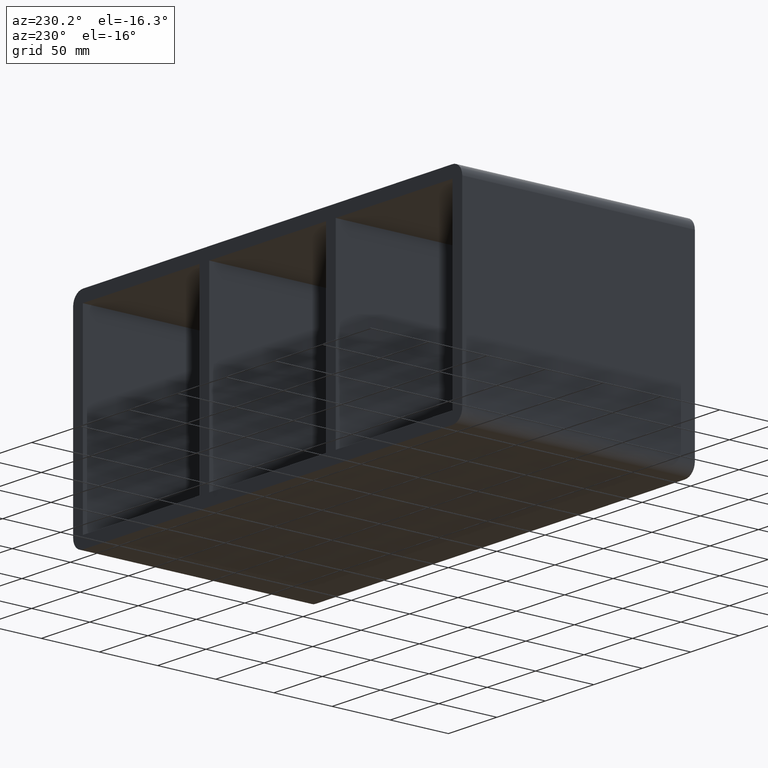
[diagram: clean part render]
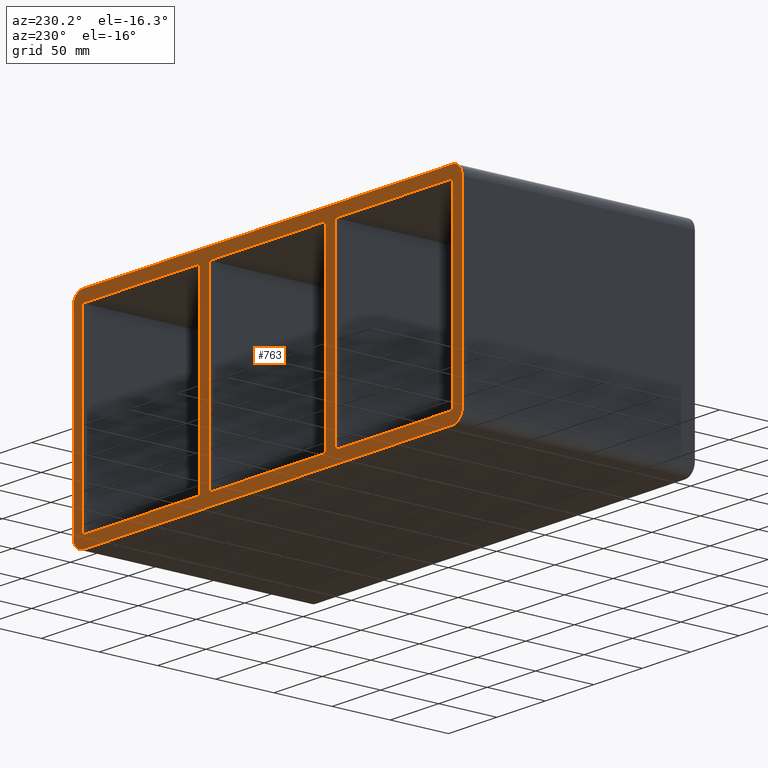
[diagram: same view with one face highlighted and labeled with its STEP entity id]
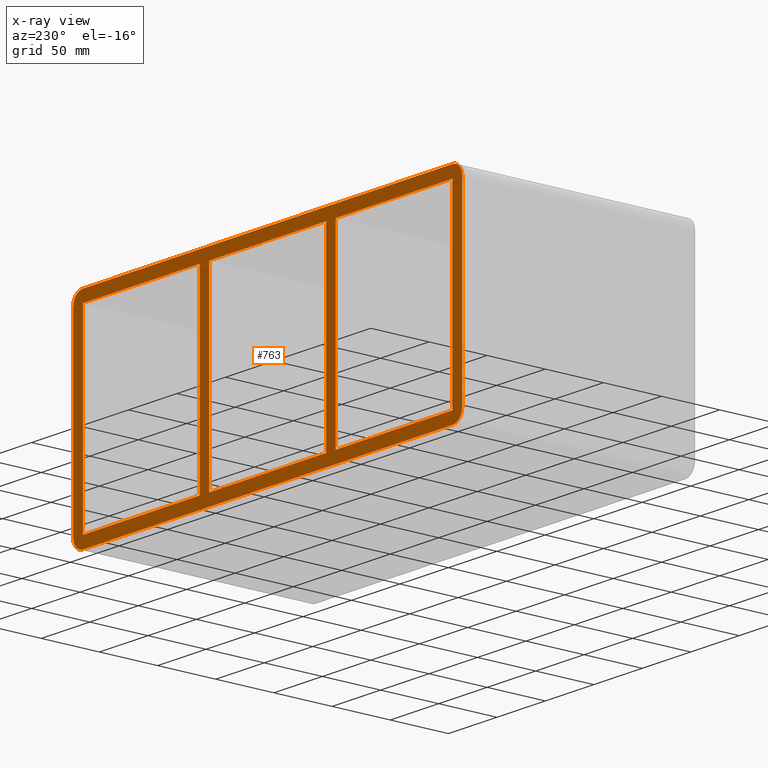
[diagram: x-ray of the same camera — body ghosted, the highlighted face saturated]
A machine part, auxiliary view. The second image highlights one B-rep face of the part: STEP entity #763.
The next image is the same camera in x-ray: the body ghosted, the highlighted face saturated — about 0% of this face is hidden behind the body in this view.
In plain terms, the highlighted planar face has unit normal (0, 1, 0).
Its self-contained STEP definition (entity closure, byte-faithful):
#83=CARTESIAN_POINT('',(60.249999999998764,197.0,79.750000000000028));
#84=VERTEX_POINT('',#83);
#91=CARTESIAN_POINT('',(60.249999999998778,197.0,-79.750000000000014));
#92=VERTEX_POINT('',#91);
#93=CARTESIAN_POINT('',(60.249999999998778,197.0,-79.750000000000014));
#94=DIRECTION('',(0.0,0.0,1.0));
#95=VECTOR('',#94,159.50000000000006);
#96=LINE('',#93,#95);
#97=EDGE_CURVE('',#92,#84,#96,.T.);
#123=CARTESIAN_POINT('',(70.249999999985448,197.0,-79.74999999997155));
#124=VERTEX_POINT('',#123);
#131=CARTESIAN_POINT('',(70.249999999985448,197.0,79.750000000000028));
#132=VERTEX_POINT('',#131);
#133=CARTESIAN_POINT('',(70.249999999985448,197.0,79.750000000000028));
#134=DIRECTION('',(0.0,0.0,-1.0));
#135=VECTOR('',#134,159.49999999997158);
#136=LINE('',#133,#135);
#137=EDGE_CURVE('',#132,#124,#136,.T.);
#154=CARTESIAN_POINT('',(-60.250000000014552,197.0,-79.74999999997155));
#155=VERTEX_POINT('',#154);
#156=CARTESIAN_POINT('',(-60.250000000014552,197.0,-79.750000000000014));
#157=DIRECTION('',(1.0,0.0,0.0));
#158=VECTOR('',#157,120.50000000001333);
#159=LINE('',#156,#158);
#160=EDGE_CURVE('',#155,#92,#159,.T.);
#193=CARTESIAN_POINT('',(190.75000000000006,197.0,-79.750000000000014));
#194=VERTEX_POINT('',#193);
#201=CARTESIAN_POINT('',(70.249999999985448,197.0,-79.750000000000014));
#202=DIRECTION('',(1.0,0.0,0.0));
#203=VECTOR('',#202,120.50000000001461);
#204=LINE('',#201,#203);
#205=EDGE_CURVE('',#124,#194,#204,.T.);
#216=CARTESIAN_POINT('',(190.75000000000006,197.0,79.750000000000028));
#217=VERTEX_POINT('',#216);
#218=CARTESIAN_POINT('',(190.75000000000006,197.0,79.750000000000028));
#219=DIRECTION('',(-1.0,0.0,0.0));
#220=VECTOR('',#219,120.50000000001459);
#221=LINE('',#218,#220);
#222=EDGE_CURVE('',#217,#132,#221,.T.);
#255=CARTESIAN_POINT('',(-60.250000000014552,197.0,79.750000000000028));
#256=VERTEX_POINT('',#255);
#263=CARTESIAN_POINT('',(60.249999999998764,197.0,79.750000000000028));
#264=DIRECTION('',(-1.0,0.0,0.0));
#265=VECTOR('',#264,120.50000000001332);
#266=LINE('',#263,#265);
#267=EDGE_CURVE('',#84,#256,#266,.T.);
#287=CARTESIAN_POINT('',(-70.250000000001251,197.0,79.750000000000028));
#288=VERTEX_POINT('',#287);
#295=CARTESIAN_POINT('',(-70.250000000001222,197.0,-79.750000000000014));
#296=VERTEX_POINT('',#295);
#297=CARTESIAN_POINT('',(-70.250000000001222,197.0,-79.750000000000014));
#298=DIRECTION('',(0.0,0.0,1.0));
#299=VECTOR('',#298,159.50000000000006);
#300=LINE('',#297,#299);
#301=EDGE_CURVE('',#296,#288,#300,.T.);
#324=CARTESIAN_POINT('',(-60.250000000014552,197.0,79.750000000000028));
#325=DIRECTION('',(0.0,0.0,-1.0));
#326=VECTOR('',#325,159.49999999997158);
#327=LINE('',#324,#326);
#328=EDGE_CURVE('',#256,#155,#327,.T.);
#340=CARTESIAN_POINT('',(-190.75,197.0,-79.750000000000014));
#341=VERTEX_POINT('',#340);
#342=CARTESIAN_POINT('',(-190.75000000000003,197.0,-79.750000000000014));
#343=DIRECTION('',(1.0,0.0,0.0));
#344=VECTOR('',#343,120.49999999999878);
#345=LINE('',#342,#344);
#346=EDGE_CURVE('',#341,#296,#345,.T.);
#379=CARTESIAN_POINT('',(-190.75,197.0,79.750000000000028));
#380=VERTEX_POINT('',#379);
#387=CARTESIAN_POINT('',(-70.250000000001251,197.0,79.750000000000028));
#388=DIRECTION('',(-1.0,0.0,0.0));
#389=VECTOR('',#388,120.49999999999875);
#390=LINE('',#387,#389);
#391=EDGE_CURVE('',#288,#380,#390,.T.);
#401=CARTESIAN_POINT('',(-200.75000000000003,197.0,-79.75));
#402=VERTEX_POINT('',#401);
#403=CARTESIAN_POINT('',(-190.75000000000003,197.0,-89.75));
#404=VERTEX_POINT('',#403);
#405=CARTESIAN_POINT('',(-190.75000000000003,197.0,-79.75));
#406=DIRECTION('',(0.0,-1.0,0.0));
#407=DIRECTION('',(-0.707106781186547,0.0,-0.707106781186547));
#408=AXIS2_PLACEMENT_3D('',#405,#406,#407);
#409=CIRCLE('',#408,9.999999999999998);
#410=EDGE_CURVE('',#402,#404,#409,.T.);
#538=CARTESIAN_POINT('',(190.75,197.0,-89.75));
#539=VERTEX_POINT('',#538);
#540=CARTESIAN_POINT('',(190.75,197.0,-89.75));
#541=DIRECTION('',(-1.0,0.0,0.0));
#542=VECTOR('',#541,381.5);
#543=LINE('',#540,#542);
#544=EDGE_CURVE('',#539,#404,#543,.T.);
#561=CARTESIAN_POINT('',(200.75,197.0,-79.75));
#562=VERTEX_POINT('',#561);
#563=CARTESIAN_POINT('',(190.75,197.0,-79.75));
#564=DIRECTION('',(0.0,-1.0,0.0));
#565=DIRECTION('',(0.707106781186547,0.0,-0.707106781186547));
#566=AXIS2_PLACEMENT_3D('',#563,#564,#565);
#567=CIRCLE('',#566,9.999999999999998);
#568=EDGE_CURVE('',#539,#562,#567,.T.);
#587=CARTESIAN_POINT('',(200.75,197.0,79.750000000000028));
#588=VERTEX_POINT('',#587);
#595=CARTESIAN_POINT('',(190.75,197.0,89.750000000000028));
#596=VERTEX_POINT('',#595);
#597=CARTESIAN_POINT('',(190.75000000000003,197.0,79.750000000000028));
#598=DIRECTION('',(0.0,-1.0,0.0));
#599=DIRECTION('',(0.707106781186547,0.0,0.707106781186547));
#600=AXIS2_PLACEMENT_3D('',#597,#598,#599);
#601=CIRCLE('',#600,9.999999999999998);
#602=EDGE_CURVE('',#588,#596,#601,.T.);
#619=CARTESIAN_POINT('',(-190.75000000000003,197.0,89.750000000000028));
#620=VERTEX_POINT('',#619);
#621=CARTESIAN_POINT('',(-190.75000000000003,197.0,89.750000000000028));
#622=DIRECTION('',(1.0,0.0,0.0));
#623=VECTOR('',#622,381.5);
#624=LINE('',#621,#623);
#625=EDGE_CURVE('',#620,#596,#624,.T.);
#642=CARTESIAN_POINT('',(-200.75000000000003,197.0,79.750000000000028));
#643=VERTEX_POINT('',#642);
#644=CARTESIAN_POINT('',(-190.75000000000003,197.0,79.750000000000028));
#645=DIRECTION('',(0.0,-1.0,0.0));
#646=DIRECTION('',(-0.707106781186547,0.0,0.707106781186547));
#647=AXIS2_PLACEMENT_3D('',#644,#645,#646);
#648=CIRCLE('',#647,9.999999999999998);
#649=EDGE_CURVE('',#620,#643,#648,.T.);
#670=CARTESIAN_POINT('',(190.75000000000006,197.0,-79.750000000000014));
#671=DIRECTION('',(0.0,0.0,1.0));
#672=VECTOR('',#671,159.50000000000006);
#673=LINE('',#670,#672);
#674=EDGE_CURVE('',#194,#217,#673,.T.);
#687=CARTESIAN_POINT('',(-190.75000000000003,197.0,79.750000000000028));
#688=DIRECTION('',(0.0,0.0,-1.0));
#689=VECTOR('',#688,159.50000000000006);
#690=LINE('',#687,#689);
#691=EDGE_CURVE('',#380,#341,#690,.T.);
#704=CARTESIAN_POINT('',(-200.75000000000003,197.0,-79.75));
#705=DIRECTION('',(0.0,0.0,1.0));
#706=VECTOR('',#705,159.50000000000003);
#707=LINE('',#704,#706);
#708=EDGE_CURVE('',#402,#643,#707,.T.);
#719=CARTESIAN_POINT('',(200.75,197.0,79.750000000000028));
#720=DIRECTION('',(0.0,0.0,-1.0));
#721=VECTOR('',#720,159.50000000000003);
#722=LINE('',#719,#721);
#723=EDGE_CURVE('',#588,#562,#722,.T.);
#730=CARTESIAN_POINT('',(-1.714444E-014,197.0,1.467558E-014));
#731=DIRECTION('',(0.0,1.0,0.0));
#732=DIRECTION('',(0.0,0.0,1.0));
#733=AXIS2_PLACEMENT_3D('',#730,#731,#732);
#734=PLANE('',#733);
#735=ORIENTED_EDGE('',*,*,#410,.F.);
#736=ORIENTED_EDGE('',*,*,#708,.T.);
#737=ORIENTED_EDGE('',*,*,#649,.F.);
#738=ORIENTED_EDGE('',*,*,#625,.T.);
#739=ORIENTED_EDGE('',*,*,#602,.F.);
#740=ORIENTED_EDGE('',*,*,#723,.T.);
#741=ORIENTED_EDGE('',*,*,#568,.F.);
#742=ORIENTED_EDGE('',*,*,#544,.T.);
#743=EDGE_LOOP('',(#735,#736,#737,#738,#739,#740,#741,#742));
#744=FACE_OUTER_BOUND('',#743,.T.);
#745=ORIENTED_EDGE('',*,*,#205,.T.);
#746=ORIENTED_EDGE('',*,*,#674,.T.);
#747=ORIENTED_EDGE('',*,*,#222,.T.);
#748=ORIENTED_EDGE('',*,*,#137,.T.);
#749=EDGE_LOOP('',(#745,#746,#747,#748));
#750=FACE_BOUND('',#749,.T.);
#751=ORIENTED_EDGE('',*,*,#97,.T.);
#752=ORIENTED_EDGE('',*,*,#267,.T.);
#753=ORIENTED_EDGE('',*,*,#328,.T.);
#754=ORIENTED_EDGE('',*,*,#160,.T.);
#755=EDGE_LOOP('',(#751,#752,#753,#754));
#756=FACE_BOUND('',#755,.T.);
#757=ORIENTED_EDGE('',*,*,#301,.T.);
#758=ORIENTED_EDGE('',*,*,#391,.T.);
#759=ORIENTED_EDGE('',*,*,#691,.T.);
#760=ORIENTED_EDGE('',*,*,#346,.T.);
#761=EDGE_LOOP('',(#757,#758,#759,#760));
#762=FACE_BOUND('',#761,.T.);
#763=ADVANCED_FACE('',(#744,#750,#756,#762),#734,.T.);